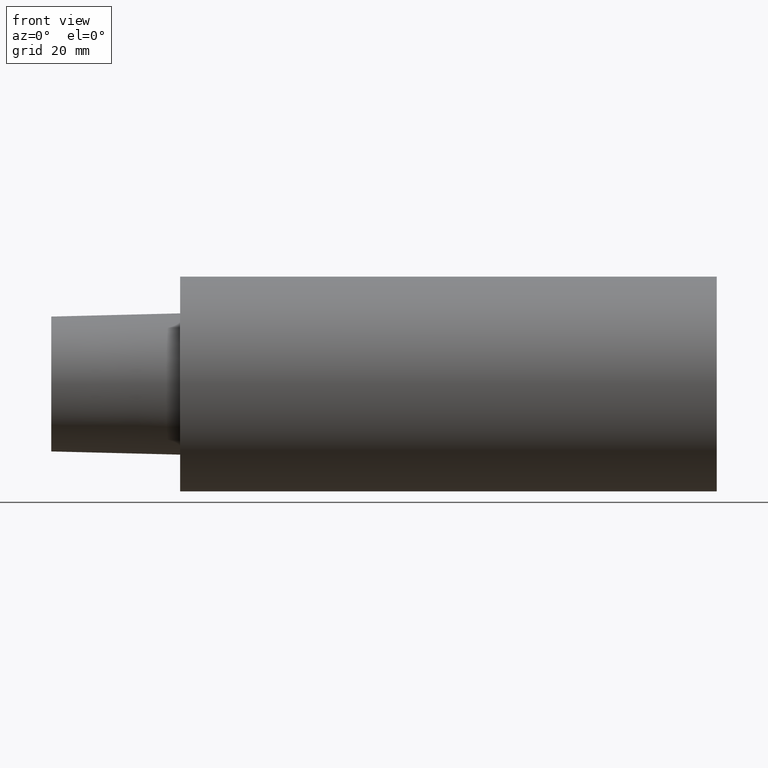
[diagram: clean part render]
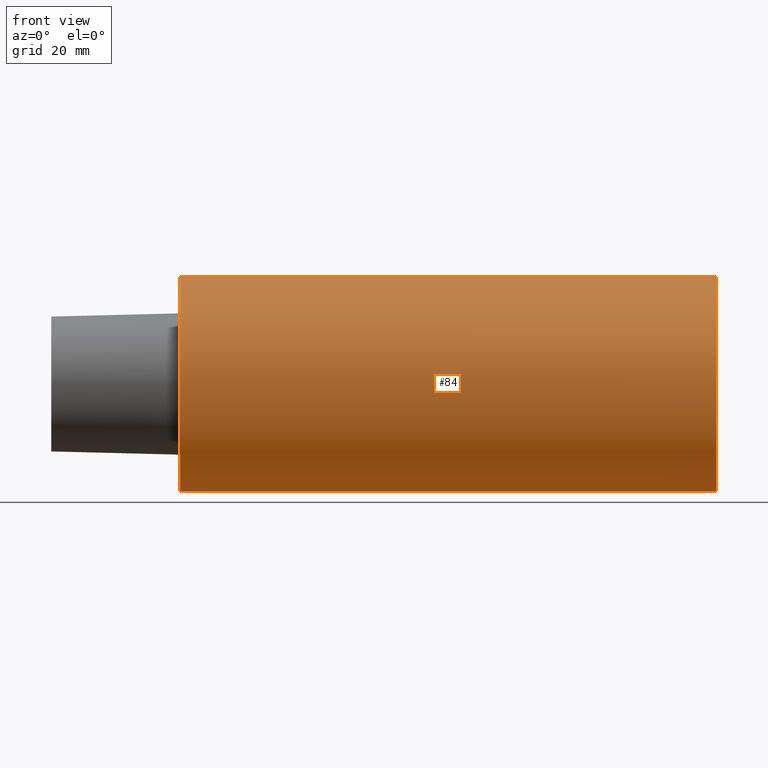
[diagram: same view with one face highlighted and labeled with its STEP entity id]
A machine part, front view. The second image highlights one B-rep face of the part: STEP entity #84.
In plain terms, the highlighted cylindrical surface (partial cylindrical patch) has radius 25 mm, axis along (-1, 0, 0).
Its self-contained STEP definition (entity closure, byte-faithful):
#2 = EDGE_CURVE ( 'NONE', #92, #183, #154, .T. ) ;
#5 = DIRECTION ( 'NONE',  ( -1.000000000000000000, 0.000000000000000000, 0.000000000000000000 ) ) ;
#8 = CARTESIAN_POINT ( 'NONE',  ( 124.9999998724999841, 3.061616994745535943E-15, -24.99999997449999967 ) ) ;
#11 = CARTESIAN_POINT ( 'NONE',  ( 0.000000000000000000, 3.061616994745535943E-15, -24.99999997449999967 ) ) ;
#19 = CARTESIAN_POINT ( 'NONE',  ( -29.99999996940000102, 3.061616994745535943E-15, -24.99999997449999967 ) ) ;
#21 = EDGE_CURVE ( 'NONE', #183, #233, #104, .T. ) ;
#38 = CARTESIAN_POINT ( 'NONE',  ( 0.000000000000000000, 0.000000000000000000, 24.99999997449999967 ) ) ;
#45 = DIRECTION ( 'NONE',  ( 0.000000000000000000, 0.000000000000000000, 1.000000000000000000 ) ) ;
#50 = DIRECTION ( 'NONE',  ( 0.000000000000000000, 0.000000000000000000, 1.000000000000000000 ) ) ;
#60 = DIRECTION ( 'NONE',  ( -1.000000000000000000, 0.000000000000000000, 0.000000000000000000 ) ) ;
#78 = CARTESIAN_POINT ( 'NONE',  ( 124.9999998724999841, 0.000000000000000000, 24.99999997449999967 ) ) ;
#84 = ADVANCED_FACE ( 'NONE', ( #178 ), #245, .T. ) ;
#86 = VECTOR ( 'NONE', #188, 1000.000000000000000 ) ;
#91 = CIRCLE ( 'NONE', #247, 24.99999997449999967 ) ;
#92 = VERTEX_POINT ( 'NONE', #8 ) ;
#94 = CARTESIAN_POINT ( 'NONE',  ( -29.99999996940000102, 0.000000000000000000, 24.99999997449999967 ) ) ;
#101 = AXIS2_PLACEMENT_3D ( 'NONE', #234, #60, #252 ) ;
#104 = CIRCLE ( 'NONE', #101, 24.99999997449999967 ) ;
#106 = EDGE_LOOP ( 'NONE', ( #207, #141, #173, #236 ) ) ;
#108 = EDGE_CURVE ( 'NONE', #92, #213, #91, .T. ) ;
#132 = AXIS2_PLACEMENT_3D ( 'NONE', #142, #5, #50 ) ;
#141 = ORIENTED_EDGE ( 'NONE', *, *, #108, .T. ) ;
#142 = CARTESIAN_POINT ( 'NONE',  ( -29.99999996940000102, 0.000000000000000000, 0.000000000000000000 ) ) ;
#154 = LINE ( 'NONE', #19, #231 ) ;
#173 = ORIENTED_EDGE ( 'NONE', *, *, #237, .T. ) ;
#178 = FACE_OUTER_BOUND ( 'NONE', #106, .T. ) ;
#183 = VERTEX_POINT ( 'NONE', #11 ) ;
#188 = DIRECTION ( 'NONE',  ( -1.000000000000000000, 0.000000000000000000, 0.000000000000000000 ) ) ;
#207 = ORIENTED_EDGE ( 'NONE', *, *, #2, .F. ) ;
#213 = VERTEX_POINT ( 'NONE', #78 ) ;
#218 = DIRECTION ( 'NONE',  ( -1.000000000000000000, 0.000000000000000000, 0.000000000000000000 ) ) ;
#231 = VECTOR ( 'NONE', #238, 1000.000000000000000 ) ;
#233 = VERTEX_POINT ( 'NONE', #38 ) ;
#234 = CARTESIAN_POINT ( 'NONE',  ( 0.000000000000000000, 0.000000000000000000, 0.000000000000000000 ) ) ;
#236 = ORIENTED_EDGE ( 'NONE', *, *, #21, .F. ) ;
#237 = EDGE_CURVE ( 'NONE', #213, #233, #251, .T. ) ;
#238 = DIRECTION ( 'NONE',  ( -1.000000000000000000, 0.000000000000000000, 0.000000000000000000 ) ) ;
#245 = CYLINDRICAL_SURFACE ( 'NONE', #132, 24.99999997449999967 ) ;
#246 = CARTESIAN_POINT ( 'NONE',  ( 124.9999998724999841, 0.000000000000000000, 0.000000000000000000 ) ) ;
#247 = AXIS2_PLACEMENT_3D ( 'NONE', #246, #218, #45 ) ;
#251 = LINE ( 'NONE', #94, #86 ) ;
#252 = DIRECTION ( 'NONE',  ( 0.000000000000000000, 0.000000000000000000, 1.000000000000000000 ) ) ;